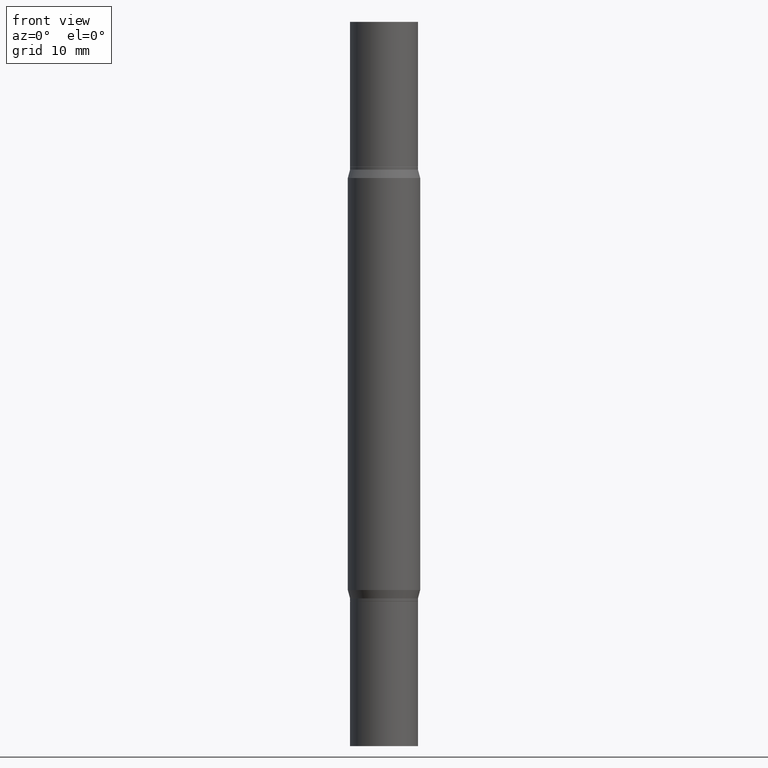
[diagram: clean part render]
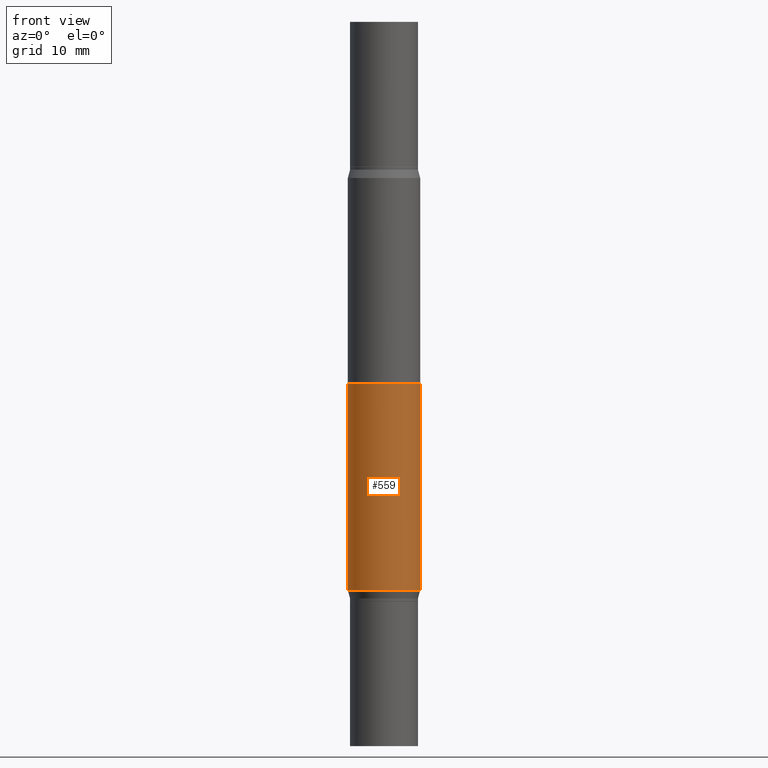
[diagram: same view with one face highlighted and labeled with its STEP entity id]
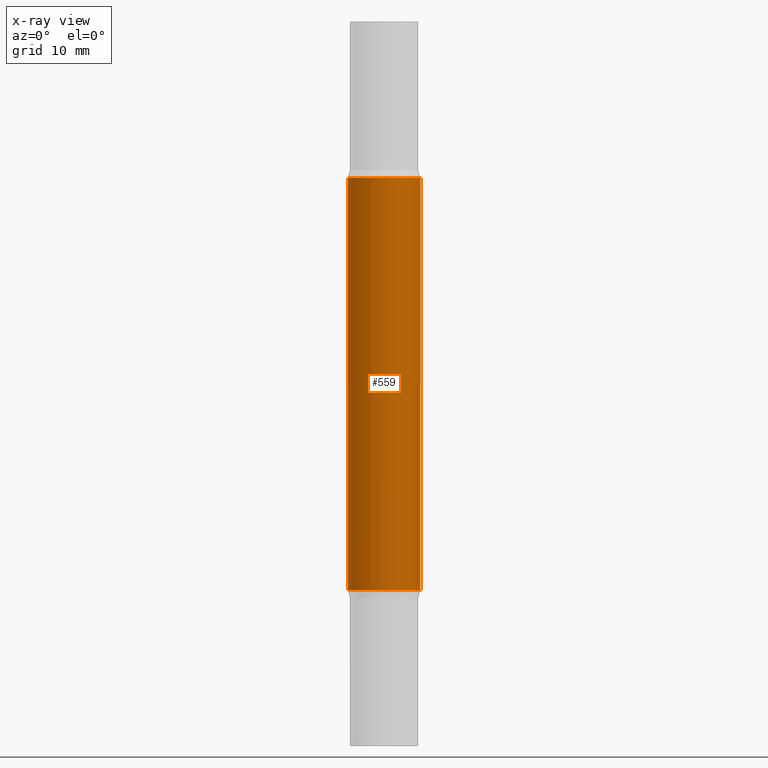
[diagram: x-ray of the same camera — body ghosted, the highlighted face saturated]
A machine part, front view. The second image highlights one B-rep face of the part: STEP entity #559.
The next image is the same camera in x-ray: the body ghosted, the highlighted face saturated — about 0% of this face is hidden behind the body in this view.
In plain terms, the highlighted cylindrical surface (edge-blend (fillet) strip) has radius 3.175 mm, axis along (-0, -0, -1).
Its self-contained STEP definition (entity closure, byte-faithful):
#101 = ORIENTED_EDGE ( 'NONE', *, *, #575, .T. ) ;
#107 = CARTESIAN_POINT ( 'NONE',  ( 4.795295336410958635E-29, -1.882062336673981410E-15, -0.5391099962990381078 ) ) ;
#134 = CARTESIAN_POINT ( 'NONE',  ( -0.1250000000000000000, -7.871545792533893657E-15, -2.499999999999999556 ) ) ;
#137 = ORIENTED_EDGE ( 'NONE', *, *, #147, .F. ) ;
#147 = EDGE_CURVE ( 'NONE', #630, #222, #203, .T. ) ;
#156 = CIRCLE ( 'NONE', #300, 0.1250000000000000000 ) ;
#173 = EDGE_CURVE ( 'NONE', #630, #831, #650, .T. ) ;
#198 = LINE ( 'NONE', #863, #336 ) ;
#200 = CARTESIAN_POINT ( 'NONE',  ( 0.1250000000000000000, -2.754932671384765144E-15, -0.5391099962990381078 ) ) ;
#201 = ORIENTED_EDGE ( 'NONE', *, *, #173, .T. ) ;
#203 = CIRCLE ( 'NONE', #333, 0.1250000000000000000 ) ;
#222 = VERTEX_POINT ( 'NONE', #200 ) ;
#265 = AXIS2_PLACEMENT_3D ( 'NONE', #877, #804, #728 ) ;
#270 = FACE_OUTER_BOUND ( 'NONE', #918, .T. ) ;
#300 = AXIS2_PLACEMENT_3D ( 'NONE', #479, #625, #606 ) ;
#333 = AXIS2_PLACEMENT_3D ( 'NONE', #107, #865, #421 ) ;
#336 = VECTOR ( 'NONE', #501, 39.37007874015748143 ) ;
#421 = DIRECTION ( 'NONE',  ( 1.000000000000000000, -6.982962677686266711E-15, 0.000000000000000000 ) ) ;
#441 = ORIENTED_EDGE ( 'NONE', *, *, #847, .F. ) ;
#479 = CARTESIAN_POINT ( 'NONE',  ( 4.795295336410958635E-29, -6.846410855445973637E-15, -1.960890003700961337 ) ) ;
#501 = DIRECTION ( 'NONE',  ( -2.445468806185136877E-29, -3.491805094961123683E-15, -1.000000000000000000 ) ) ;
#559 = ADVANCED_FACE ( 'NONE', ( #270 ), #574, .T. ) ;
#574 = CYLINDRICAL_SURFACE ( 'NONE', #265, 0.1250000000000000000 ) ;
#575 = EDGE_CURVE ( 'NONE', #831, #893, #156, .T. ) ;
#582 = DIRECTION ( 'NONE',  ( -2.445468806185136877E-29, -3.491805094961123683E-15, -1.000000000000000000 ) ) ;
#606 = DIRECTION ( 'NONE',  ( 1.000000000000000000, -6.982962677686270655E-15, 0.000000000000000000 ) ) ;
#625 = DIRECTION ( 'NONE',  ( -2.445468806185136597E-29, 3.491481338843145583E-15, 1.000000000000000000 ) ) ;
#630 = VERTEX_POINT ( 'NONE', #850 ) ;
#637 = CARTESIAN_POINT ( 'NONE',  ( -0.1250000000000000000, -3.506789423832489448E-15, -1.960890003700961337 ) ) ;
#650 = LINE ( 'NONE', #134, #867 ) ;
#652 = CARTESIAN_POINT ( 'NONE',  ( 0.1250000000000000000, -7.719281190156756975E-15, -1.960890003700961337 ) ) ;
#728 = DIRECTION ( 'NONE',  ( 1.000000000000000000, -6.982962677686262766E-15, 0.000000000000000000 ) ) ;
#804 = DIRECTION ( 'NONE',  ( -2.445468806185136597E-29, -3.491805094961124077E-15, -1.000000000000000000 ) ) ;
#831 = VERTEX_POINT ( 'NONE', #637 ) ;
#847 = EDGE_CURVE ( 'NONE', #222, #893, #198, .T. ) ;
#850 = CARTESIAN_POINT ( 'NONE',  ( -0.1250000000000000000, -1.024500086952540162E-15, -0.5391099962990381078 ) ) ;
#863 = CARTESIAN_POINT ( 'NONE',  ( 0.1250000000000000000, -9.601978376966118441E-15, -2.499999999999999556 ) ) ;
#865 = DIRECTION ( 'NONE',  ( 2.445468806185136597E-29, 3.491805094961124077E-15, 1.000000000000000000 ) ) ;
#867 = VECTOR ( 'NONE', #582, 39.37007874015748143 ) ;
#877 = CARTESIAN_POINT ( 'NONE',  ( 0.000000000000000000, -8.729108042255335103E-15, -2.499999999999999556 ) ) ;
#893 = VERTEX_POINT ( 'NONE', #652 ) ;
#918 = EDGE_LOOP ( 'NONE', ( #137, #201, #101, #441 ) ) ;